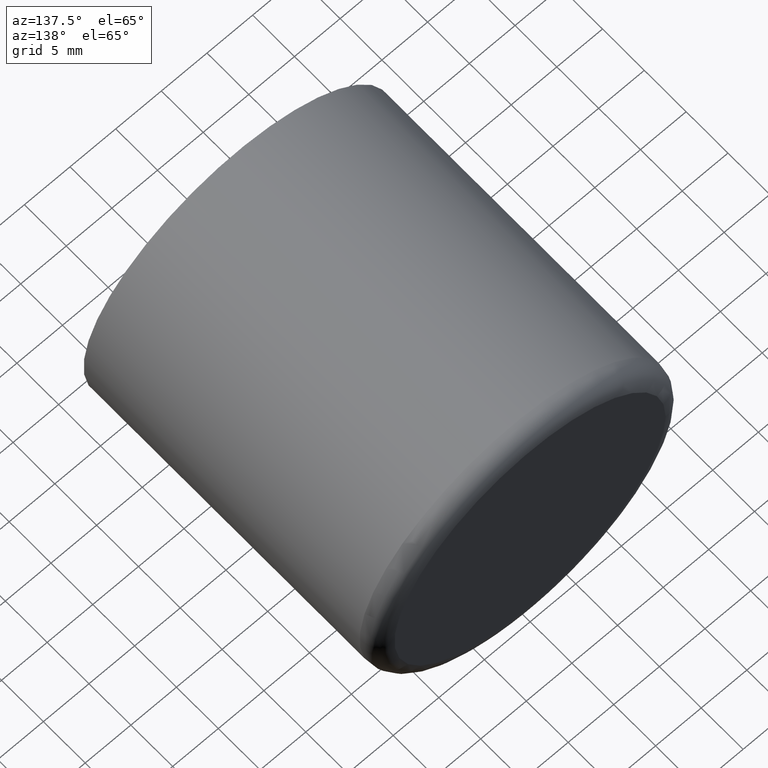
[diagram: clean part render]
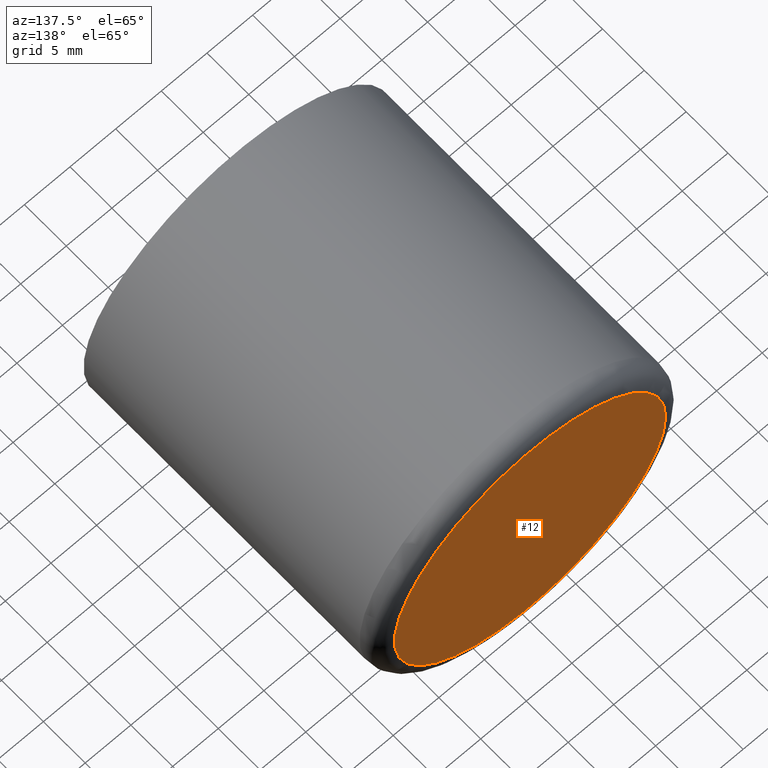
[diagram: same view with one face highlighted and labeled with its STEP entity id]
A machine part, auxiliary view. The second image highlights one B-rep face of the part: STEP entity #12.
In plain terms, the highlighted planar face has unit normal (0, -1, 0).
Its self-contained STEP definition (entity closure, byte-faithful):
#12 = ADVANCED_FACE ( 'NONE', ( #8103 ), #3038, .F. ) ;
#24 = DIRECTION ( 'NONE',  ( -7.248013002707695800E-018, 1.000000000000000000, -0.0000000000000000000 ) ) ;
#48 = DIRECTION ( 'NONE',  ( 7.248013002707695800E-018, -1.000000000000000000, 0.0000000000000000000 ) ) ;
#202 = ORIENTED_EDGE ( 'NONE', *, *, #4951, .T. ) ;
#1716 = CARTESIAN_POINT ( 'NONE',  ( -14.84999999999999800, 35.00000000000000700, 0.0000000000000000000 ) ) ;
#3038 = PLANE ( 'NONE',  #11706 ) ;
#3296 = AXIS2_PLACEMENT_3D ( 'NONE', #6228, #24, #9515 ) ;
#4951 = EDGE_CURVE ( 'NONE', #5085, #5085, #5349, .T. ) ;
#5085 = VERTEX_POINT ( 'NONE', #1716 ) ;
#5349 = CIRCLE ( 'NONE', #3296, 14.84999999999999800 ) ;
#5842 = EDGE_LOOP ( 'NONE', ( #202 ) ) ;
#6228 = CARTESIAN_POINT ( 'NONE',  ( -2.536804550947693900E-016, 35.00000000000000700, 0.0000000000000000000 ) ) ;
#6256 = CARTESIAN_POINT ( 'NONE',  ( 3.900626667190922600E-034, 35.00000000000000000, 0.0000000000000000000 ) ) ;
#8103 = FACE_OUTER_BOUND ( 'NONE', #5842, .T. ) ;
#8459 = DIRECTION ( 'NONE',  ( 1.000000000000000000, 7.248013002707695800E-018, 0.0000000000000000000 ) ) ;
#9515 = DIRECTION ( 'NONE',  ( -1.000000000000000000, 0.0000000000000000000, 0.0000000000000000000 ) ) ;
#11706 = AXIS2_PLACEMENT_3D ( 'NONE', #6256, #48, #8459 ) ;